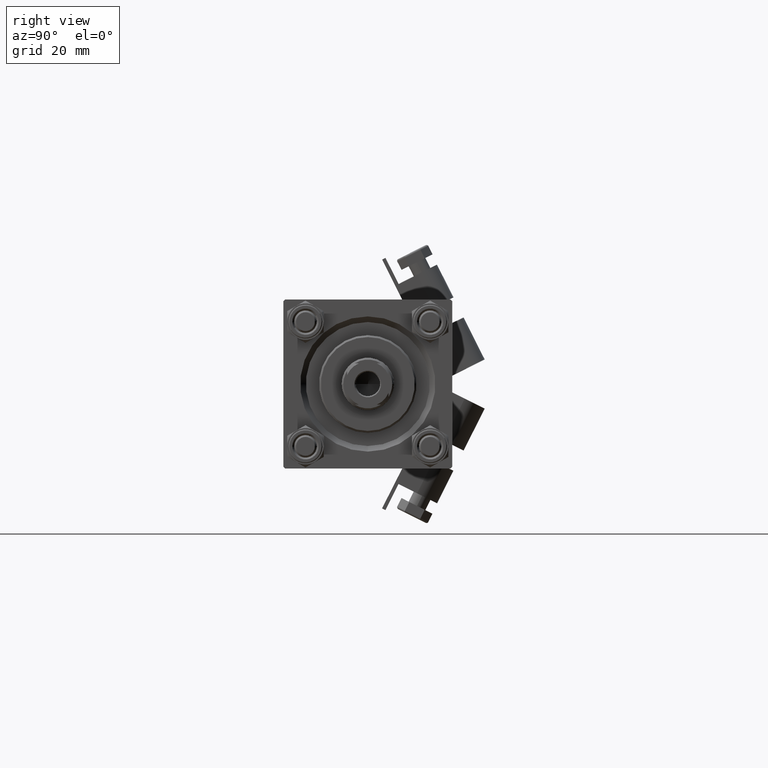
[diagram: clean part render]
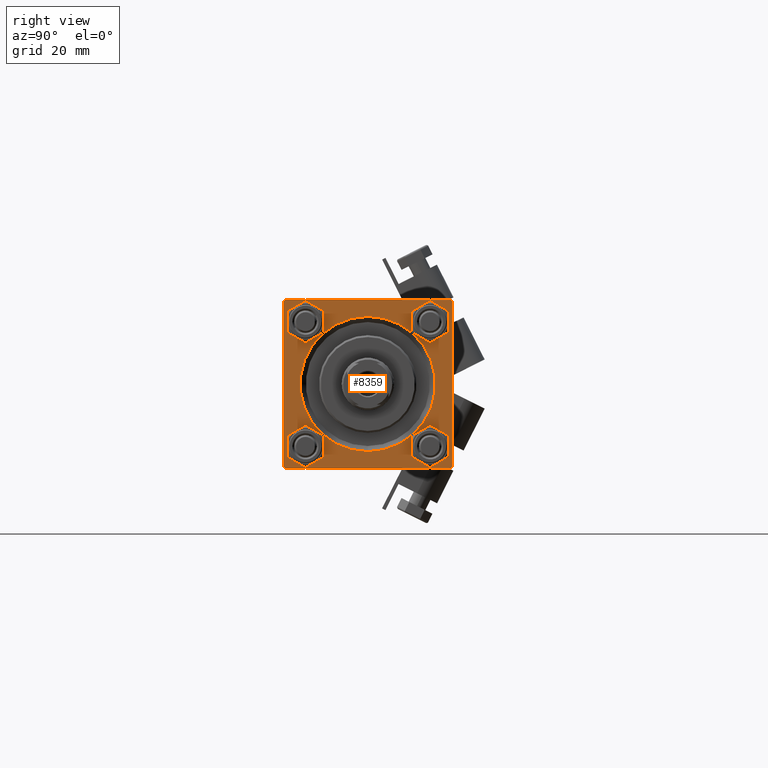
[diagram: same view with one face highlighted and labeled with its STEP entity id]
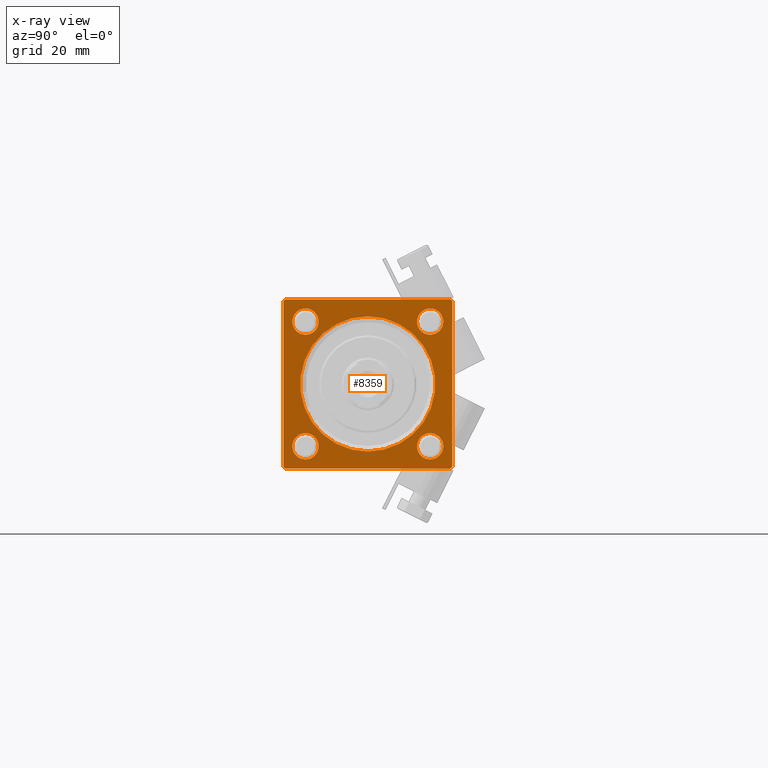
[diagram: x-ray of the same camera — body ghosted, the highlighted face saturated]
A machine part, right view. The second image highlights one B-rep face of the part: STEP entity #8359.
The next image is the same camera in x-ray: the body ghosted, the highlighted face saturated — about 0% of this face is hidden behind the body in this view.
In plain terms, the highlighted planar face has unit normal (-1, 0, 0).
Its self-contained STEP definition (entity closure, byte-faithful):
#141 = AXIS2_PLACEMENT_3D ( 'NONE', #47302, #1635, #20973 ) ;
#640 = EDGE_CURVE ( 'NONE', #8334, #6014, #42260, .T. ) ;
#858 = VECTOR ( 'NONE', #23112, 1000.000000000000000 ) ;
#864 = CARTESIAN_POINT ( 'NONE',  ( 123.0000000000000142, -22.49999999999999645, -21.99999999999997868 ) ) ;
#1079 = VERTEX_POINT ( 'NONE', #864 ) ;
#1289 = DIRECTION ( 'NONE',  ( -1.000000000000000000, 0.000000000000000000, -0.000000000000000000 ) ) ;
#1519 = CARTESIAN_POINT ( 'NONE',  ( 123.0000000000000142, 2.204364238465235822E-15, 18.00000000000000355 ) ) ;
#1635 = DIRECTION ( 'NONE',  ( -1.000000000000000000, 0.000000000000000000, -0.000000000000000000 ) ) ;
#2047 = AXIS2_PLACEMENT_3D ( 'NONE', #49621, #25706, #42150 ) ;
#2081 = AXIS2_PLACEMENT_3D ( 'NONE', #41526, #29692, #2114 ) ;
#2114 = DIRECTION ( 'NONE',  ( 0.000000000000000000, 0.000000000000000000, 1.000000000000000000 ) ) ;
#2240 = CARTESIAN_POINT ( 'NONE',  ( 123.0000000000000142, -16.59999999999999076, 16.60000000000000853 ) ) ;
#2845 = CIRCLE ( 'NONE', #17646, 3.500000000000031086 ) ;
#3440 = EDGE_CURVE ( 'NONE', #44413, #22318, #34438, .T. ) ;
#3787 = DIRECTION ( 'NONE',  ( -1.000000000000000000, 0.000000000000000000, -0.000000000000000000 ) ) ;
#4002 = CARTESIAN_POINT ( 'NONE',  ( 123.0000000000000142, 21.99999999999996092, 22.50000000000000355 ) ) ;
#4609 = DIRECTION ( 'NONE',  ( 0.000000000000000000, 0.000000000000000000, 1.000000000000000000 ) ) ;
#4739 = ORIENTED_EDGE ( 'NONE', *, *, #35452, .T. ) ;
#4910 = ORIENTED_EDGE ( 'NONE', *, *, #29686, .T. ) ;
#5117 = VERTEX_POINT ( 'NONE', #22963 ) ;
#5196 = CARTESIAN_POINT ( 'NONE',  ( 123.0000000000000142, -21.99999999999999645, -22.50000000000000000 ) ) ;
#6014 = VERTEX_POINT ( 'NONE', #38634 ) ;
#6596 = CARTESIAN_POINT ( 'NONE',  ( 123.0000000000000142, 22.50000000000000355, 22.50000000000000355 ) ) ;
#6837 = DIRECTION ( 'NONE',  ( -1.000000000000000000, 0.000000000000000000, -0.000000000000000000 ) ) ;
#7040 = VERTEX_POINT ( 'NONE', #49591 ) ;
#7627 = EDGE_CURVE ( 'NONE', #48978, #29194, #19714, .T. ) ;
#7959 = FACE_BOUND ( 'NONE', #13555, .T. ) ;
#8125 = CARTESIAN_POINT ( 'NONE',  ( 123.0000000000000142, 22.50000000000000355, 21.99999999999997513 ) ) ;
#8334 = VERTEX_POINT ( 'NONE', #50731 ) ;
#8359 = ADVANCED_FACE ( 'NONE', ( #46617, #22683, #42754, #7959, #35555, #19829 ), #11844, .F. ) ;
#8886 = DIRECTION ( 'NONE',  ( 0.000000000000000000, -0.7071067811865573427, 0.7071067811865378028 ) ) ;
#8979 = CARTESIAN_POINT ( 'NONE',  ( 123.0000000000000142, -16.59999999999999076, 16.60000000000000853 ) ) ;
#9537 = CARTESIAN_POINT ( 'NONE',  ( 123.0000000000000142, 16.59999999999999787, 20.10000000000003340 ) ) ;
#9826 = DIRECTION ( 'NONE',  ( 0.000000000000000000, 0.7071067811865425767, -0.7071067811865525687 ) ) ;
#9841 = AXIS2_PLACEMENT_3D ( 'NONE', #50922, #3787, #23645 ) ;
#10014 = EDGE_CURVE ( 'NONE', #5117, #33743, #45422, .T. ) ;
#10078 = CARTESIAN_POINT ( 'NONE',  ( 123.0000000000000142, 16.59999999999999787, 16.60000000000000497 ) ) ;
#10997 = CARTESIAN_POINT ( 'NONE',  ( 123.0000000000000142, 22.50000000000000355, -22.49999999999999645 ) ) ;
#11037 = DIRECTION ( 'NONE',  ( 0.000000000000000000, -1.000000000000000000, -2.312964634635742957E-16 ) ) ;
#11358 = ORIENTED_EDGE ( 'NONE', *, *, #49192, .T. ) ;
#11475 = ORIENTED_EDGE ( 'NONE', *, *, #44199, .T. ) ;
#11605 = CARTESIAN_POINT ( 'NONE',  ( 123.0000000000000142, 22.00000000000000355, -22.49999999999999645 ) ) ;
#11844 = PLANE ( 'NONE',  #36326 ) ;
#13071 = EDGE_LOOP ( 'NONE', ( #24082, #50791 ) ) ;
#13555 = EDGE_LOOP ( 'NONE', ( #20601, #4739 ) ) ;
#14281 = VERTEX_POINT ( 'NONE', #30085 ) ;
#14428 = CARTESIAN_POINT ( 'NONE',  ( 123.0000000000000142, 16.59999999999999787, -20.10000000000003340 ) ) ;
#14689 = CARTESIAN_POINT ( 'NONE',  ( 123.0000000000000142, -16.59999999999999076, -16.60000000000000853 ) ) ;
#15093 = EDGE_CURVE ( 'NONE', #20085, #22318, #30593, .T. ) ;
#15252 = CIRCLE ( 'NONE', #2081, 3.500000000000031086 ) ;
#15946 = AXIS2_PLACEMENT_3D ( 'NONE', #14689, #18047, #30412 ) ;
#16395 = EDGE_LOOP ( 'NONE', ( #45012, #25490, #34691, #20477, #29537, #11358, #44926, #35280 ) ) ;
#16660 = VECTOR ( 'NONE', #8886, 1000.000000000000000 ) ;
#17646 = AXIS2_PLACEMENT_3D ( 'NONE', #2240, #44063, #40211 ) ;
#17750 = DIRECTION ( 'NONE',  ( 0.000000000000000000, 0.000000000000000000, -1.000000000000000000 ) ) ;
#17928 = VECTOR ( 'NONE', #9826, 999.9999999999998863 ) ;
#18047 = DIRECTION ( 'NONE',  ( -1.000000000000000000, 0.000000000000000000, -0.000000000000000000 ) ) ;
#18410 = CARTESIAN_POINT ( 'NONE',  ( 123.0000000000000142, -21.99999999999998224, 22.49999999999999289 ) ) ;
#18938 = AXIS2_PLACEMENT_3D ( 'NONE', #10078, #41762, #37428 ) ;
#19714 = CIRCLE ( 'NONE', #9841, 3.500000000000031086 ) ;
#19719 = VECTOR ( 'NONE', #34956, 1000.000000000000000 ) ;
#19829 = FACE_OUTER_BOUND ( 'NONE', #16395, .T. ) ;
#20039 = VECTOR ( 'NONE', #11037, 1000.000000000000000 ) ;
#20085 = VERTEX_POINT ( 'NONE', #8125 ) ;
#20311 = VERTEX_POINT ( 'NONE', #46734 ) ;
#20477 = ORIENTED_EDGE ( 'NONE', *, *, #3440, .T. ) ;
#20516 = VERTEX_POINT ( 'NONE', #34799 ) ;
#20598 = CIRCLE ( 'NONE', #47748, 3.500000000000031086 ) ;
#20601 = ORIENTED_EDGE ( 'NONE', *, *, #28822, .T. ) ;
#20862 = DIRECTION ( 'NONE',  ( 0.000000000000000000, 0.000000000000000000, 1.000000000000000000 ) ) ;
#20973 = DIRECTION ( 'NONE',  ( 0.000000000000000000, 0.000000000000000000, 1.000000000000000000 ) ) ;
#22092 = LINE ( 'NONE', #10997, #47854 ) ;
#22318 = VERTEX_POINT ( 'NONE', #28938 ) ;
#22520 = EDGE_CURVE ( 'NONE', #20516, #28438, #46330, .T. ) ;
#22540 = CARTESIAN_POINT ( 'NONE',  ( 123.0000000000000142, 16.59999999999999787, -13.09999999999997300 ) ) ;
#22546 = ORIENTED_EDGE ( 'NONE', *, *, #30263, .T. ) ;
#22578 = DIRECTION ( 'NONE',  ( 0.000000000000000000, 0.000000000000000000, 1.000000000000000000 ) ) ;
#22683 = FACE_BOUND ( 'NONE', #33758, .T. ) ;
#22963 = CARTESIAN_POINT ( 'NONE',  ( 123.0000000000000142, 0.000000000000000000, -18.00000000000000355 ) ) ;
#23089 = CARTESIAN_POINT ( 'NONE',  ( 123.0000000000000142, 22.50000000000000355, -22.00000000000001066 ) ) ;
#23112 = DIRECTION ( 'NONE',  ( 0.000000000000000000, 0.000000000000000000, -1.000000000000000000 ) ) ;
#23645 = DIRECTION ( 'NONE',  ( 0.000000000000000000, 0.000000000000000000, 1.000000000000000000 ) ) ;
#23705 = CARTESIAN_POINT ( 'NONE',  ( 123.0000000000000142, 0.000000000000000000, 0.000000000000000000 ) ) ;
#23967 = EDGE_LOOP ( 'NONE', ( #26172, #11475 ) ) ;
#24082 = ORIENTED_EDGE ( 'NONE', *, *, #10014, .T. ) ;
#24724 = DIRECTION ( 'NONE',  ( -1.000000000000000000, 0.000000000000000000, -0.000000000000000000 ) ) ;
#25490 = ORIENTED_EDGE ( 'NONE', *, *, #37435, .T. ) ;
#25706 = DIRECTION ( 'NONE',  ( -1.000000000000000000, 0.000000000000000000, -0.000000000000000000 ) ) ;
#26172 = ORIENTED_EDGE ( 'NONE', *, *, #44488, .T. ) ;
#27994 = CIRCLE ( 'NONE', #18938, 3.500000000000031086 ) ;
#28406 = VERTEX_POINT ( 'NONE', #30786 ) ;
#28438 = VERTEX_POINT ( 'NONE', #18410 ) ;
#28439 = CARTESIAN_POINT ( 'NONE',  ( 123.0000000000000142, -16.59999999999999076, 13.09999999999997655 ) ) ;
#28822 = EDGE_CURVE ( 'NONE', #46491, #20311, #2845, .T. ) ;
#28938 = CARTESIAN_POINT ( 'NONE',  ( 123.0000000000000142, 22.50000000000000355, -21.99999999999999645 ) ) ;
#29112 = CARTESIAN_POINT ( 'NONE',  ( 123.0000000000000142, -22.49999999999999645, 22.49999999999999289 ) ) ;
#29194 = VERTEX_POINT ( 'NONE', #22540 ) ;
#29537 = ORIENTED_EDGE ( 'NONE', *, *, #15093, .F. ) ;
#29649 = LINE ( 'NONE', #37131, #46165 ) ;
#29686 = EDGE_CURVE ( 'NONE', #29194, #48978, #44848, .T. ) ;
#29692 = DIRECTION ( 'NONE',  ( -1.000000000000000000, 0.000000000000000000, -0.000000000000000000 ) ) ;
#30085 = CARTESIAN_POINT ( 'NONE',  ( 123.0000000000000142, -22.49999999999999645, 22.00000000000000711 ) ) ;
#30256 = CIRCLE ( 'NONE', #43403, 3.500000000000031086 ) ;
#30263 = EDGE_CURVE ( 'NONE', #6014, #8334, #15252, .T. ) ;
#30412 = DIRECTION ( 'NONE',  ( 0.000000000000000000, 0.000000000000000000, 1.000000000000000000 ) ) ;
#30593 = LINE ( 'NONE', #6596, #858 ) ;
#30664 = AXIS2_PLACEMENT_3D ( 'NONE', #42143, #6837, #22578 ) ;
#30786 = CARTESIAN_POINT ( 'NONE',  ( 123.0000000000000142, 16.59999999999999787, 13.09999999999997300 ) ) ;
#32274 = CIRCLE ( 'NONE', #141, 18.00000000000000355 ) ;
#33024 = DIRECTION ( 'NONE',  ( -0.000000000000000000, -0.7071067811865573427, -0.7071067811865378028 ) ) ;
#33743 = VERTEX_POINT ( 'NONE', #1519 ) ;
#33758 = EDGE_LOOP ( 'NONE', ( #38334, #4910 ) ) ;
#33897 = EDGE_CURVE ( 'NONE', #14281, #1079, #41685, .T. ) ;
#34438 = LINE ( 'NONE', #23089, #19719 ) ;
#34691 = ORIENTED_EDGE ( 'NONE', *, *, #48162, .F. ) ;
#34799 = CARTESIAN_POINT ( 'NONE',  ( 123.0000000000000142, 21.99999999999996092, 22.50000000000000355 ) ) ;
#34956 = DIRECTION ( 'NONE',  ( -0.000000000000000000, 0.7071067811865573427, 0.7071067811865378028 ) ) ;
#35280 = ORIENTED_EDGE ( 'NONE', *, *, #47736, .T. ) ;
#35452 = EDGE_CURVE ( 'NONE', #20311, #46491, #30256, .T. ) ;
#35555 = FACE_BOUND ( 'NONE', #13071, .T. ) ;
#36326 = AXIS2_PLACEMENT_3D ( 'NONE', #23705, #38655, #38400 ) ;
#37131 = CARTESIAN_POINT ( 'NONE',  ( 123.0000000000000142, -22.49999999999999645, 22.00000000000000711 ) ) ;
#37428 = DIRECTION ( 'NONE',  ( 0.000000000000000000, 0.000000000000000000, 1.000000000000000000 ) ) ;
#37435 = EDGE_CURVE ( 'NONE', #1079, #7040, #40518, .T. ) ;
#38077 = DIRECTION ( 'NONE',  ( 0.000000000000000000, -1.000000000000000000, -7.709882115452476934E-17 ) ) ;
#38334 = ORIENTED_EDGE ( 'NONE', *, *, #7627, .T. ) ;
#38400 = DIRECTION ( 'NONE',  ( -0.000000000000000000, 0.000000000000000000, 1.000000000000000000 ) ) ;
#38634 = CARTESIAN_POINT ( 'NONE',  ( 123.0000000000000142, -16.59999999999999076, -13.09999999999997655 ) ) ;
#38655 = DIRECTION ( 'NONE',  ( -1.000000000000000000, 0.000000000000000000, -0.000000000000000000 ) ) ;
#40211 = DIRECTION ( 'NONE',  ( 0.000000000000000000, 0.000000000000000000, 1.000000000000000000 ) ) ;
#40518 = LINE ( 'NONE', #5196, #17928 ) ;
#41526 = CARTESIAN_POINT ( 'NONE',  ( 123.0000000000000142, -16.59999999999999076, -16.60000000000000853 ) ) ;
#41685 = LINE ( 'NONE', #29112, #48248 ) ;
#41762 = DIRECTION ( 'NONE',  ( -1.000000000000000000, 0.000000000000000000, -0.000000000000000000 ) ) ;
#42143 = CARTESIAN_POINT ( 'NONE',  ( 123.0000000000000142, 0.000000000000000000, 0.000000000000000000 ) ) ;
#42150 = DIRECTION ( 'NONE',  ( 0.000000000000000000, 0.000000000000000000, 1.000000000000000000 ) ) ;
#42260 = CIRCLE ( 'NONE', #15946, 3.500000000000031086 ) ;
#42754 = FACE_BOUND ( 'NONE', #23967, .T. ) ;
#43403 = AXIS2_PLACEMENT_3D ( 'NONE', #8979, #24724, #20862 ) ;
#44046 = CARTESIAN_POINT ( 'NONE',  ( 123.0000000000000142, 16.59999999999999787, 16.60000000000000497 ) ) ;
#44063 = DIRECTION ( 'NONE',  ( -1.000000000000000000, 0.000000000000000000, -0.000000000000000000 ) ) ;
#44191 = LINE ( 'NONE', #4002, #16660 ) ;
#44199 = EDGE_CURVE ( 'NONE', #48921, #28406, #27994, .T. ) ;
#44299 = EDGE_LOOP ( 'NONE', ( #50826, #22546 ) ) ;
#44413 = VERTEX_POINT ( 'NONE', #11605 ) ;
#44488 = EDGE_CURVE ( 'NONE', #28406, #48921, #20598, .T. ) ;
#44848 = CIRCLE ( 'NONE', #2047, 3.500000000000031086 ) ;
#44926 = ORIENTED_EDGE ( 'NONE', *, *, #22520, .T. ) ;
#45012 = ORIENTED_EDGE ( 'NONE', *, *, #33897, .T. ) ;
#45422 = CIRCLE ( 'NONE', #30664, 18.00000000000000355 ) ;
#46165 = VECTOR ( 'NONE', #33024, 1000.000000000000000 ) ;
#46330 = LINE ( 'NONE', #47090, #20039 ) ;
#46491 = VERTEX_POINT ( 'NONE', #28439 ) ;
#46617 = FACE_BOUND ( 'NONE', #44299, .T. ) ;
#46734 = CARTESIAN_POINT ( 'NONE',  ( 123.0000000000000142, -16.59999999999999076, 20.10000000000003695 ) ) ;
#47090 = CARTESIAN_POINT ( 'NONE',  ( 123.0000000000000142, 22.50000000000000355, 22.50000000000000355 ) ) ;
#47302 = CARTESIAN_POINT ( 'NONE',  ( 123.0000000000000142, 0.000000000000000000, 0.000000000000000000 ) ) ;
#47736 = EDGE_CURVE ( 'NONE', #28438, #14281, #29649, .T. ) ;
#47748 = AXIS2_PLACEMENT_3D ( 'NONE', #44046, #1289, #4609 ) ;
#47854 = VECTOR ( 'NONE', #38077, 1000.000000000000000 ) ;
#48162 = EDGE_CURVE ( 'NONE', #44413, #7040, #22092, .T. ) ;
#48248 = VECTOR ( 'NONE', #17750, 1000.000000000000000 ) ;
#48295 = EDGE_CURVE ( 'NONE', #33743, #5117, #32274, .T. ) ;
#48921 = VERTEX_POINT ( 'NONE', #9537 ) ;
#48978 = VERTEX_POINT ( 'NONE', #14428 ) ;
#49192 = EDGE_CURVE ( 'NONE', #20085, #20516, #44191, .T. ) ;
#49591 = CARTESIAN_POINT ( 'NONE',  ( 123.0000000000000142, -21.99999999999998224, -22.50000000000000000 ) ) ;
#49621 = CARTESIAN_POINT ( 'NONE',  ( 123.0000000000000142, 16.59999999999999787, -16.60000000000000497 ) ) ;
#50731 = CARTESIAN_POINT ( 'NONE',  ( 123.0000000000000142, -16.59999999999999076, -20.10000000000003695 ) ) ;
#50791 = ORIENTED_EDGE ( 'NONE', *, *, #48295, .T. ) ;
#50826 = ORIENTED_EDGE ( 'NONE', *, *, #640, .T. ) ;
#50922 = CARTESIAN_POINT ( 'NONE',  ( 123.0000000000000142, 16.59999999999999787, -16.60000000000000497 ) ) ;